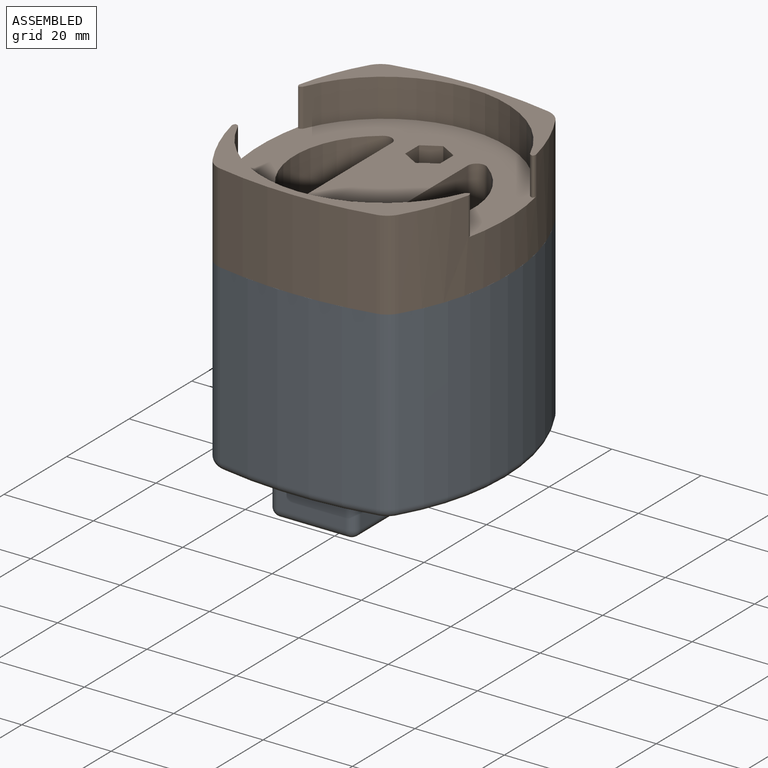
[diagram: assembled view]
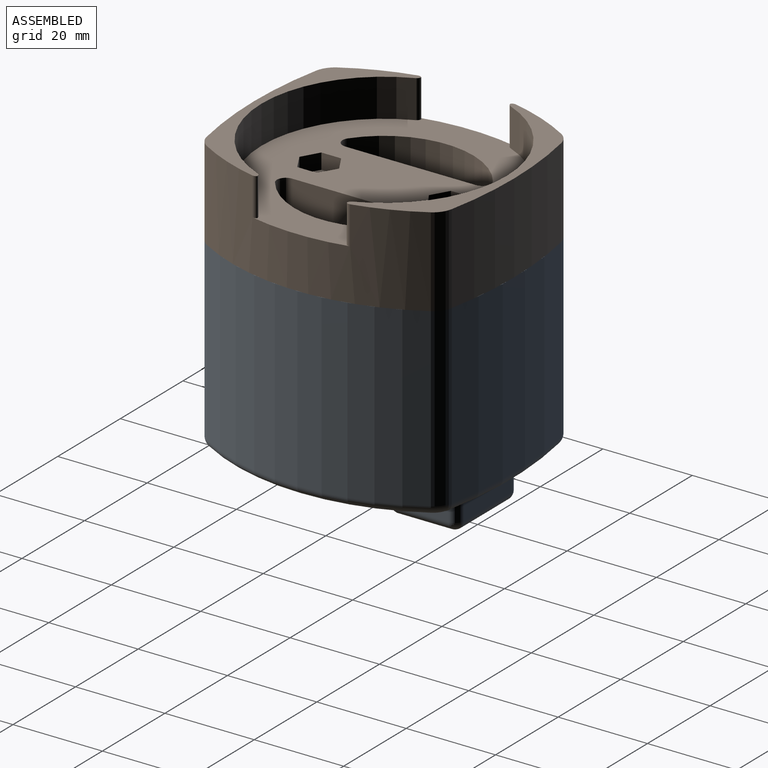
[diagram: assembled view, second angle]
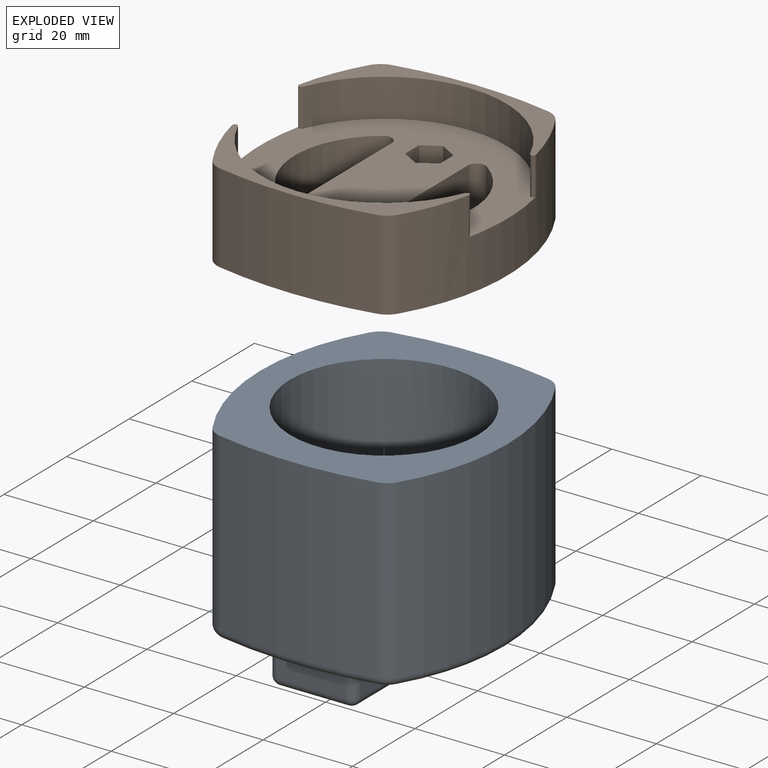
[diagram: exploded view]
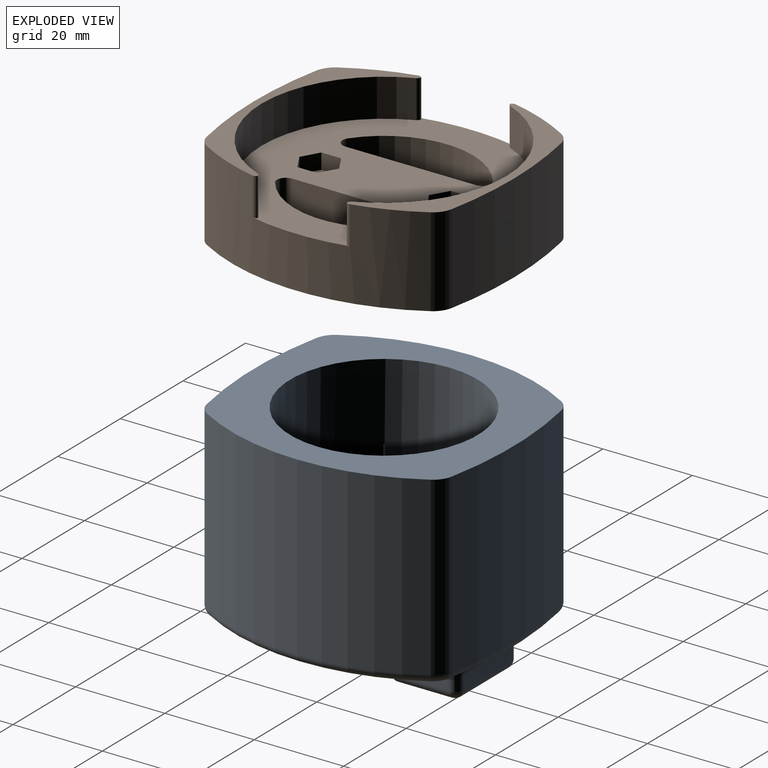
[diagram: exploded view, second angle]
ASSEMBLY  parts=2 mates=2
PART A: 70 faces, bbox 63.5x73x50 mm
  f0: plane 58.3x55.4mm, normal (0,0,-1), area 1434.7mm2, adj f2,f3,f4,f5,f40,f41,f42,f43
  f1: plane 54.3x51.4mm, normal (0,0,1), area 1442.9mm2, adj f24,f25,f26,f27,f28,f29,f31,f32
  f2: cylinder r=49.09mm len=50.14mm, axis (0,0,-1), area 2078.4mm2, adj f0,f40,f43,f53
  f3: cylinder r=89.24mm len=39.5mm, axis (0,0,-1), area 1391.4mm2, adj f0,f40,f41,f49
  f4: cylinder r=49.09mm len=50.14mm, axis (0,0,-1), area 2078.4mm2, adj f0,f41,f42,f46
  f5: cylinder r=89.24mm len=39.5mm, axis (0,0,-1), area 1391.4mm2, adj f0,f42,f43,f50
  f6: cylinder r=10mm len=12.75mm, axis (0,0,-1), area 69.1mm2, adj f20,f23,f30,f58
  f7: plane 12x5mm, normal (1,0,0), area 60mm2, adj f22,f23,f29,f54
  f8: plane 15.3x5mm, normal (0,1,0), area 76.5mm2, adj f21,f22,f25,f57
  f9: plane 12x5mm, normal (-1,0,0), area 60mm2, adj f20,f21,f26,f61
  f10: plane 15.3x12mm, normal (0,0,1), area 154.9mm2, adj f54,f57,f58,f61
  f11: cylinder r=10mm len=12.75mm, axis (0,0,-1), area 69.1mm2, adj f16,f19,f37,f65
  f12: plane 12x5mm, normal (-1,0,0), area 60mm2, adj f16,f17,f33,f69
  f13: plane 15.3x5mm, normal (0,-1,0), area 76.5mm2, adj f17,f18,f34,f66
  f14: plane 12x5mm, normal (1,0,0), area 60mm2, adj f18,f19,f38,f62
  f15: plane 15.3x12mm, normal (0,0,1), area 154.9mm2, adj f62,f65,f66,f69
  f16: cylinder r=2mm len=5mm, axis (0,0,-1), area 22.6mm2, adj f11,f12,f35,f67
  f17: cylinder r=2mm len=5mm, axis (0,0,-1), area 15.7mm2, adj f12,f13,f32,f68
  f18: cylinder r=2mm len=5mm, axis (0,0,1), area 15.7mm2, adj f13,f14,f36,f64
  f19: cylinder r=2mm len=5mm, axis (0,0,-1), area 22.6mm2, adj f11,f14,f39,f63
  f20: cylinder r=2mm len=5mm, axis (0,0,-1), area 22.6mm2, adj f6,f9,f28,f60
  f21: cylinder r=2mm len=5mm, axis (0,0,1), area 15.7mm2, adj f8,f9,f24,f59
  f22: cylinder r=2mm len=5mm, axis (0,0,-1), area 15.7mm2, adj f7,f8,f27,f55
  f23: cylinder r=2mm len=5mm, axis (0,0,-1), area 22.6mm2, adj f6,f7,f31,f56
  f24: torus R=3.5mm, axis (0,0,1), area 9.4mm2, adj f1,f21,f25,f26
  f25: cylinder r=1.5mm len=15.3mm, axis (-1,0,0), area 36mm2, adj f1,f8,f24,f27
  f26: cylinder r=1.5mm len=12mm, axis (0,-1,0), area 28.3mm2, adj f1,f9,f24,f28
  f27: torus R=3.5mm, axis (0,0,1), area 9.4mm2, adj f1,f22,f25,f29
  f28: torus R=3.5mm, axis (0,0,1), area 13.6mm2, adj f1,f20,f26,f30
  f29: cylinder r=1.5mm len=12mm, axis (0,1,0), area 28.3mm2, adj f1,f7,f27,f31
  f30: torus R=8.5mm, axis (0,0,1), area 30.8mm2, adj f6,f28,f31,f45
  f31: torus R=3.5mm, axis (0,0,1), area 13.6mm2, adj f1,f23,f29,f30
  f32: torus R=3.5mm, axis (0,0,1), area 9.4mm2, adj f1,f17,f33,f34
  f33: cylinder r=1.5mm len=12mm, axis (0,-1,0), area 28.3mm2, adj f1,f12,f32,f35
  f34: cylinder r=1.5mm len=15.3mm, axis (1,0,0), area 36mm2, adj f1,f13,f32,f36
  f35: torus R=3.5mm, axis (0,0,1), area 13.6mm2, adj f1,f16,f33,f37
  f36: torus R=3.5mm, axis (0,0,1), area 9.4mm2, adj f1,f18,f34,f38
  f37: torus R=8.5mm, axis (0,0,1), area 30.8mm2, adj f11,f35,f39,f45
  f38: cylinder r=1.5mm len=12mm, axis (0,1,0), area 28.3mm2, adj f1,f14,f36,f39
  f39: torus R=3.5mm, axis (0,0,1), area 13.6mm2, adj f1,f19,f37,f38
  f40: cylinder r=5mm len=39.5mm, axis (0,0,-1), area 165.4mm2, adj f0,f2,f3,f51
  f41: cylinder r=5mm len=39.5mm, axis (0,0,-1), area 165.4mm2, adj f0,f3,f4,f47
  f42: cylinder r=5mm len=39.5mm, axis (0,0,-1), area 165.4mm2, adj f0,f4,f5,f48
  f43: cylinder r=5mm len=39.5mm, axis (0,0,-1), area 165.4mm2, adj f0,f2,f5,f52
  f44: cylinder r=21mm len=42mm, axis (0,0,-1), area 3298.7mm2, adj f0,f45
  f45: cone r=8.5mm half-angle=37.1deg, axis (0,0,-1), area 1918.4mm2, adj f1,f30,f37,f44
  f46: torus R=47.09mm, axis (0,0,1), area 162.9mm2, adj f1,f4,f47,f48
  f47: torus R=3mm, axis (0,0,1), area 11.2mm2, adj f1,f41,f46,f49
  f48: torus R=3mm, axis (0,0,1), area 11.2mm2, adj f1,f42,f46,f50
  f49: torus R=87.24mm, axis (0,0,1), area 109.8mm2, adj f1,f3,f47,f51
  f50: torus R=87.24mm, axis (0,0,1), area 109.8mm2, adj f1,f5,f48,f52
  f51: torus R=3mm, axis (0,0,1), area 11.2mm2, adj f1,f40,f49,f53
  f52: torus R=3mm, axis (0,0,1), area 11.2mm2, adj f1,f43,f50,f53
  f53: torus R=47.09mm, axis (0,0,1), area 162.9mm2, adj f1,f2,f51,f52
  f54: cylinder r=2mm len=12mm, axis (0,-1,0), area 37.7mm2, adj f7,f10,f55,f56
  f55: sphere r=2mm, area 6.3mm2, adj f22,f54,f57
  f56: sphere r=2mm, area 9mm2, adj f23,f54,f58
  f57: cylinder r=2mm len=15.3mm, axis (1,0,0), area 48.1mm2, adj f8,f10,f55,f59
  f58: torus R=12mm, axis (0,0,1), area 46.6mm2, adj f6,f10,f56,f60
  f59: sphere r=2mm, area 6.3mm2, adj f21,f57,f61
  f60: sphere r=2mm, area 9mm2, adj f20,f58,f61
  f61: cylinder r=2mm len=12mm, axis (0,1,0), area 37.7mm2, adj f9,f10,f59,f60
  f62: cylinder r=2mm len=12mm, axis (0,-1,0), area 37.7mm2, adj f14,f15,f63,f64
  f63: sphere r=2mm, area 9mm2, adj f19,f62,f65
  f64: sphere r=2mm, area 6.3mm2, adj f18,f62,f66
  f65: torus R=12mm, axis (0,0,1), area 46.6mm2, adj f11,f15,f63,f67
  f66: cylinder r=2mm len=15.3mm, axis (-1,0,0), area 48.1mm2, adj f13,f15,f64,f68
  f67: sphere r=2mm, area 9mm2, adj f16,f65,f69
  f68: sphere r=2mm, area 6.3mm2, adj f17,f66,f69
  f69: cylinder r=2mm len=12mm, axis (0,1,0), area 37.7mm2, adj f12,f15,f67,f68
PART B: 46 faces, bbox 55.4x58.3x20 mm
  f0: cylinder r=2.15mm len=8mm, axis (0,0,1), area 108.1mm2, adj f3,f39
  f1: plane 55.4x54.83mm, normal (0,0,-1), area 1696mm2, adj f4,f6,f10,f11,f16,f17,f18,f19
  f2: cylinder r=2.15mm len=8mm, axis (0,0,1), area 108.1mm2, adj f3,f32
  f3: plane 58.3x55.4mm, normal (0,0,1), area 2205.2mm2, adj f0,f2,f4,f6,f8,f9,f12,f13
  f4: cylinder r=49.09mm len=50.14mm, axis (0,0,-1), area 865mm2, adj f1,f3,f5,f7,f13,f14,f21,f22
  f5: plane 52.99x19.15mm, normal (0,0,-1), area 217.8mm2, adj f4,f6,f8,f11,f12,f13,f16,f17
  f6: cylinder r=49.09mm len=50.14mm, axis (0,0,-1), area 865mm2, adj f1,f3,f5,f7,f12,f15,f20,f23
  f7: plane 52.99x19.15mm, normal (0,0,-1), area 217.8mm2, adj f4,f6,f9,f10,f14,f15,f18,f19
  f8: cylinder r=89.24mm len=35mm, axis (0,0,-1), area 704.5mm2, adj f3,f5,f12,f13
  f9: cylinder r=89.24mm len=35mm, axis (0,0,-1), area 704.5mm2, adj f3,f7,f14,f15
  f10: cylinder r=27.41mm len=50.55mm, axis (0,0,-1), area 546.8mm2, adj f1,f7,f18,f19
  f11: cylinder r=27.41mm len=50.55mm, axis (0,0,-1), area 546.8mm2, adj f1,f5,f16,f17
  f12: cylinder r=5mm len=20mm, axis (0,0,-1), area 83.8mm2, adj f3,f5,f6,f8
  f13: cylinder r=5mm len=20mm, axis (0,0,-1), area 83.8mm2, adj f3,f4,f5,f8
  f14: cylinder r=5mm len=20mm, axis (0,0,-1), area 83.8mm2, adj f3,f4,f7,f9
  f15: cylinder r=5mm len=20mm, axis (0,0,-1), area 83.8mm2, adj f3,f6,f7,f9
  f16: cylinder r=1mm len=8.5mm, axis (0,0,-1), area 10mm2, adj f1,f5,f11,f21
  f17: cylinder r=1mm len=8.5mm, axis (0,0,-1), area 10mm2, adj f1,f5,f11,f20
  f18: cylinder r=1mm len=8.5mm, axis (0,0,-1), area 10mm2, adj f1,f7,f10,f23
  f19: cylinder r=1mm len=8.5mm, axis (0,0,-1), area 10mm2, adj f1,f7,f10,f22
  f20: cylinder r=1mm len=8.5mm, axis (0,0,1), area 8.6mm2, adj f1,f5,f6,f17
  f21: cylinder r=1mm len=8.5mm, axis (0,0,-1), area 8.6mm2, adj f1,f4,f5,f16
  f22: cylinder r=1mm len=8.5mm, axis (0,0,-1), area 8.6mm2, adj f1,f4,f7,f19
  f23: cylinder r=1mm len=8.5mm, axis (0,0,1), area 8.6mm2, adj f1,f6,f7,f18
  f24: cylinder r=20mm len=32.49mm, axis (0,0,1), area 436.1mm2, adj f1,f3,f28,f29
  f25: plane 29.24x11.5mm, normal (1,0,0), area 336.3mm2, adj f1,f3,f28,f29
  f26: cylinder r=20mm len=32.49mm, axis (0,0,1), area 436.1mm2, adj f1,f3,f30,f31
  f27: plane 29.24x11.5mm, normal (-1,0,0), area 336.3mm2, adj f1,f3,f30,f31
  f28: cylinder r=2mm len=11.5mm, axis (0,0,1), area 50.5mm2, adj f1,f3,f24,f25
  f29: cylinder r=2mm len=11.5mm, axis (0,0,1), area 50.5mm2, adj f1,f3,f24,f25
  f30: cylinder r=2mm len=11.5mm, axis (0,0,1), area 50.5mm2, adj f1,f3,f26,f27
  f31: cylinder r=2mm len=11.5mm, axis (0,0,1), area 50.5mm2, adj f1,f3,f26,f27
  f32: plane 8.89x7.7mm, normal (0,0,-1), area 36.8mm2, adj f2,f33,f34,f35,f36,f37,f38
  f33: plane 3.85x3.5mm, normal (-0.5,0.87,0), area 15.6mm2, adj f1,f32,f34,f38
  f34: plane 3.85x3.5mm, normal (0.5,0.87,0), area 15.6mm2, adj f1,f32,f33,f35
  f35: plane 4.45x3.5mm, normal (1,0,0), area 15.6mm2, adj f1,f32,f34,f36
  f36: plane 3.85x3.5mm, normal (0.5,-0.87,0), area 15.6mm2, adj f1,f32,f35,f37
  f37: plane 3.85x3.5mm, normal (-0.5,-0.87,0), area 15.6mm2, adj f1,f32,f36,f38
  f38: plane 4.45x3.5mm, normal (-1,0,0), area 15.6mm2, adj f1,f32,f33,f37
  f39: plane 8.89x7.7mm, normal (0,0,-1), area 36.8mm2, adj f0,f40,f41,f42,f43,f44,f45
  f40: plane 3.85x3.5mm, normal (-0.5,-0.87,0), area 15.6mm2, adj f1,f39,f41,f45
  f41: plane 4.45x3.5mm, normal (-1,0,0), area 15.6mm2, adj f1,f39,f40,f42
  f42: plane 3.85x3.5mm, normal (-0.5,0.87,0), area 15.6mm2, adj f1,f39,f41,f43
  f43: plane 3.85x3.5mm, normal (0.5,0.87,0), area 15.6mm2, adj f1,f39,f42,f44
  f44: plane 4.45x3.5mm, normal (1,0,0), area 15.6mm2, adj f1,f39,f43,f45
  f45: plane 3.85x3.5mm, normal (0.5,-0.87,0), area 15.6mm2, adj f1,f39,f40,f44
PLACE A rot(axis=(1,0,0),180deg) t=(-1.12,0.26,57.72)mm fixed
PLACE B rot(axis=(1,0,0),180deg) t=(-1.12,0.26,63.22)mm
MATE planar B.f4 <-> A.f0  axis (0,0,-1) through (20.27,0.26,43.22)mm
MATE cylindrical B.f4 <-> A.f2  axis (0,0,1) through (20.27,0.26,53.22)mm
